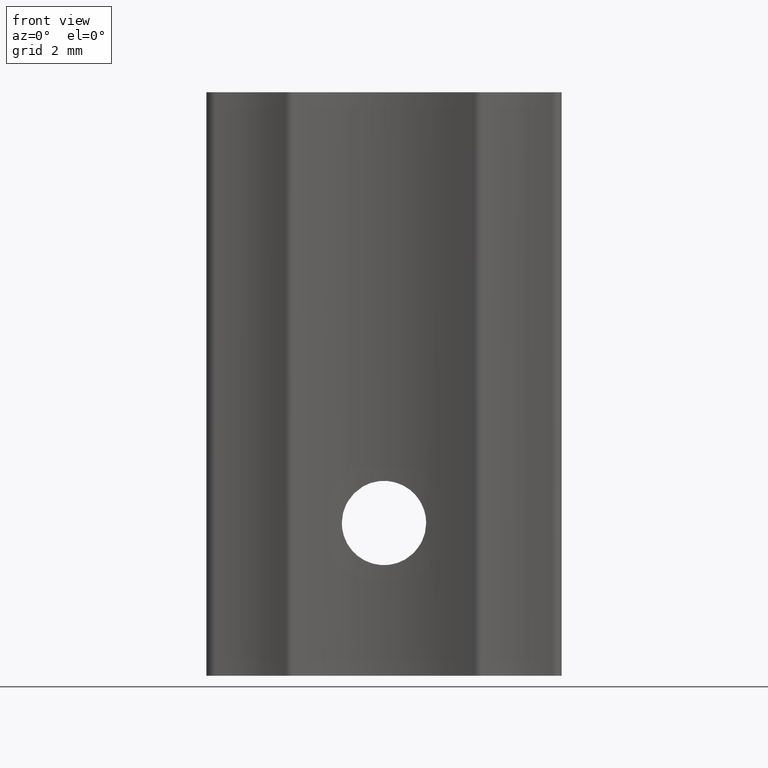
[diagram: clean part render]
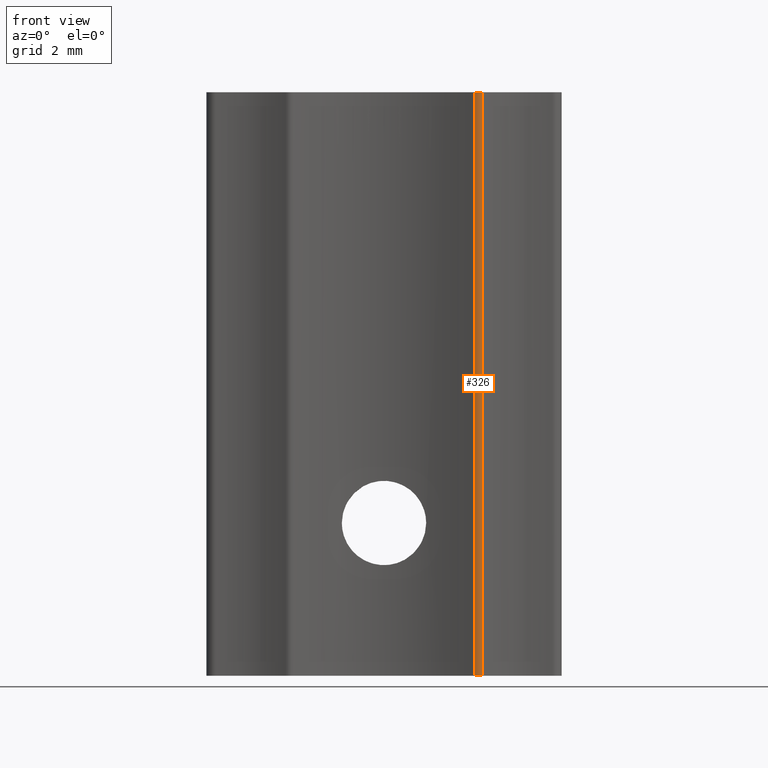
[diagram: same view with one face highlighted and labeled with its STEP entity id]
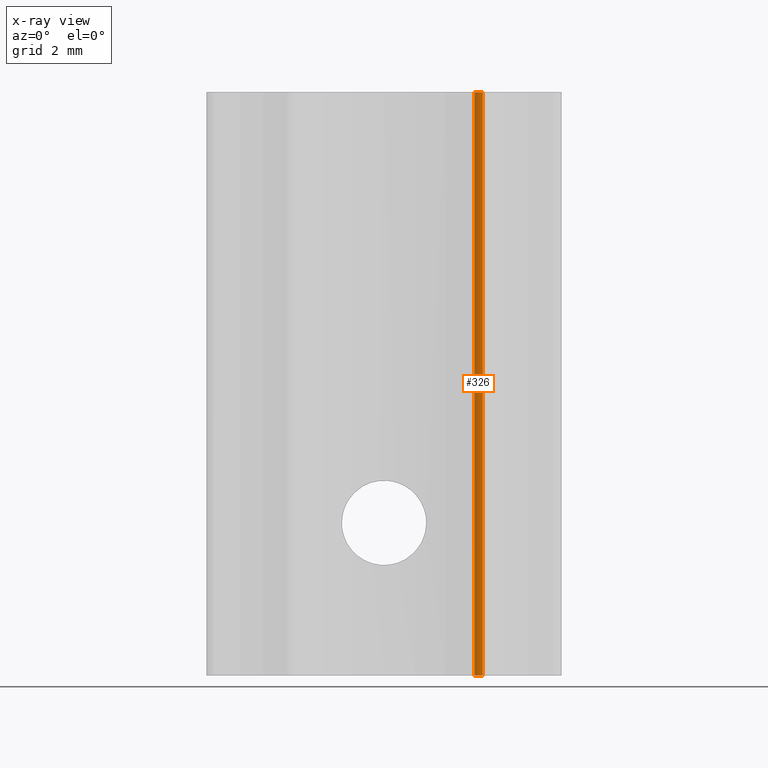
[diagram: x-ray of the same camera — body ghosted, the highlighted face saturated]
A machine part, front view. The second image highlights one B-rep face of the part: STEP entity #326.
The next image is the same camera in x-ray: the body ghosted, the highlighted face saturated — about 0% of this face is hidden behind the body in this view.
In plain terms, the highlighted cylindrical surface (edge-blend (fillet) strip) has radius 0.25 mm, axis along (0, 0, 1).
Its self-contained STEP definition (entity closure, byte-faithful):
#29=LINE('',#705,#44);
#30=LINE('',#711,#45);
#44=VECTOR('',#463,10.);
#45=VECTOR('',#470,10.);
#57=CYLINDRICAL_SURFACE('',#382,0.25);
#86=FACE_OUTER_BOUND('',#103,.T.);
#103=EDGE_LOOP('',(#281,#282,#283,#284));
#125=CIRCLE('',#383,0.25);
#126=CIRCLE('',#384,0.25);
#160=VERTEX_POINT('',#701);
#161=VERTEX_POINT('',#703);
#162=VERTEX_POINT('',#707);
#163=VERTEX_POINT('',#709);
#207=EDGE_CURVE('',#160,#161,#29,.T.);
#208=EDGE_CURVE('',#160,#162,#125,.T.);
#209=EDGE_CURVE('',#163,#161,#126,.T.);
#210=EDGE_CURVE('',#162,#163,#30,.T.);
#281=ORIENTED_EDGE('',*,*,#208,.F.);
#282=ORIENTED_EDGE('',*,*,#207,.T.);
#283=ORIENTED_EDGE('',*,*,#209,.F.);
#284=ORIENTED_EDGE('',*,*,#210,.F.);
#326=ADVANCED_FACE('',(#86),#57,.T.);
#382=AXIS2_PLACEMENT_3D('',#706,#464,#465);
#383=AXIS2_PLACEMENT_3D('',#708,#466,#467);
#384=AXIS2_PLACEMENT_3D('',#710,#468,#469);
#463=DIRECTION('',(0.,0.,1.));
#464=DIRECTION('center_axis',(0.,0.,1.));
#465=DIRECTION('ref_axis',(0.440000000000006,0.897997772825743,0.));
#466=DIRECTION('center_axis',(0.,0.,-1.));
#467=DIRECTION('ref_axis',(0.440000000000006,0.897997772825743,0.));
#468=DIRECTION('center_axis',(0.,0.,1.));
#469=DIRECTION('ref_axis',(0.440000000000006,0.897997772825743,0.));
#470=DIRECTION('',(0.,0.,1.));
#701=CARTESIAN_POINT('',(2.87489452013419,-0.604081135364544,0.));
#703=CARTESIAN_POINT('',(2.87489452013419,-0.604081135364544,17.));
#705=CARTESIAN_POINT('',(2.87489452013419,-0.604081135364544,0.));
#706=CARTESIAN_POINT('Origin',(2.75,-0.387513919839088,0.));
#707=CARTESIAN_POINT('',(2.64,-0.612013363045523,0.));
#708=CARTESIAN_POINT('Origin',(2.75,-0.387513919839088,0.));
#709=CARTESIAN_POINT('',(2.64,-0.612013363045523,17.));
#710=CARTESIAN_POINT('Origin',(2.75,-0.387513919839088,17.));
#711=CARTESIAN_POINT('',(2.64,-0.612013363045523,0.));